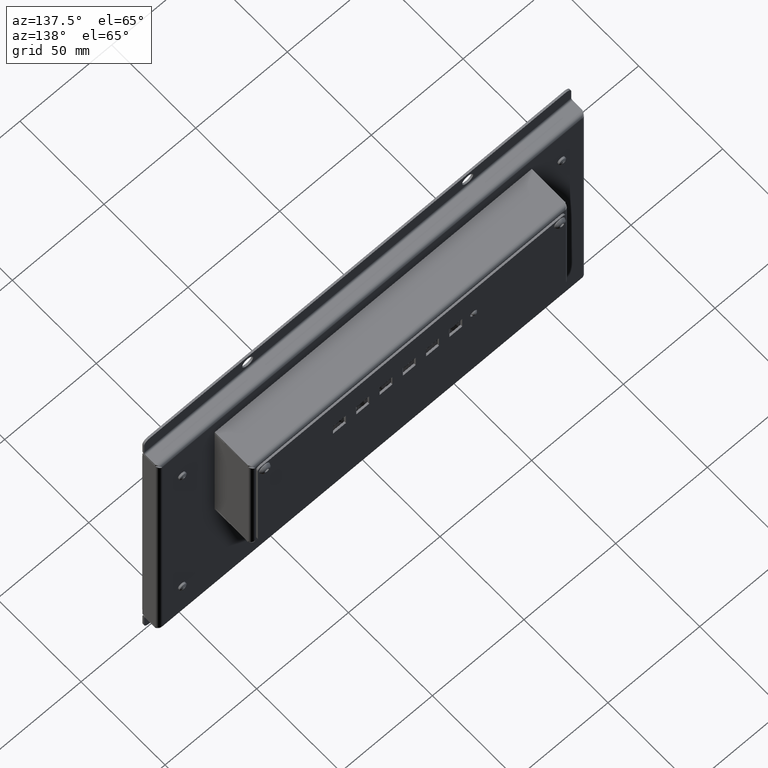
[diagram: clean part render]
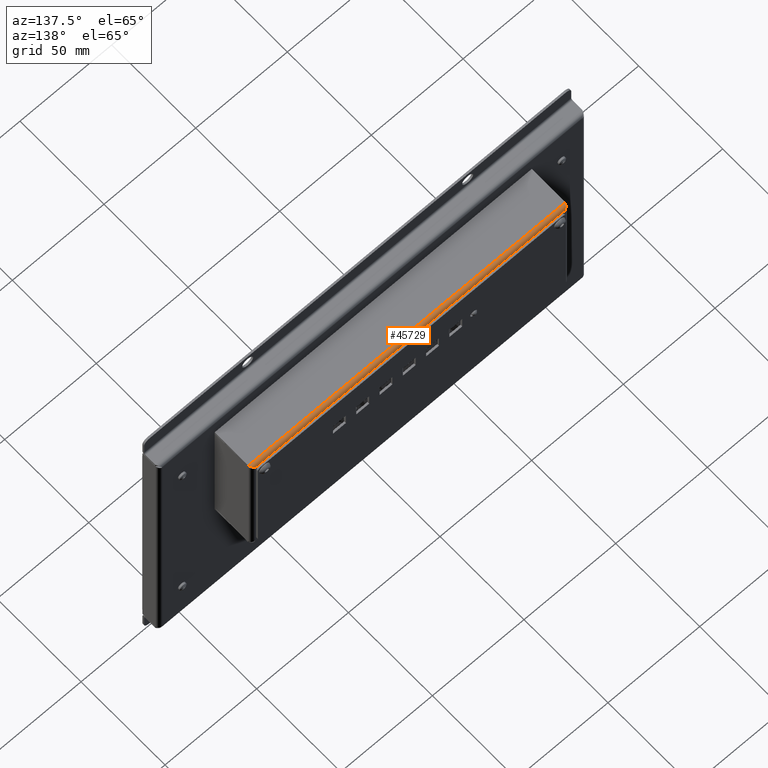
[diagram: same view with one face highlighted and labeled with its STEP entity id]
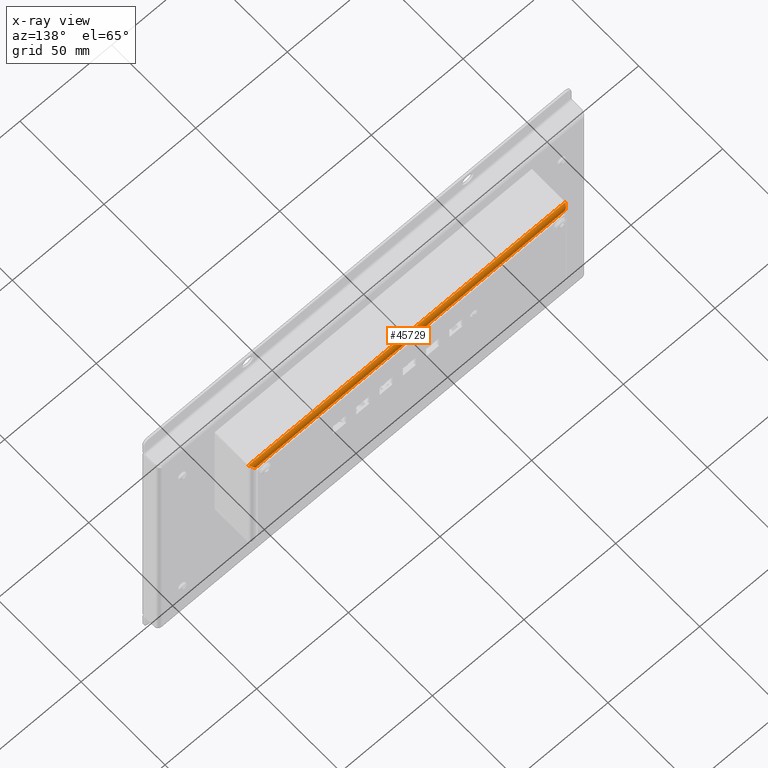
[diagram: x-ray of the same camera — body ghosted, the highlighted face saturated]
A machine part, auxiliary view. The second image highlights one B-rep face of the part: STEP entity #45729.
The next image is the same camera in x-ray: the body ghosted, the highlighted face saturated — about 0% of this face is hidden behind the body in this view.
In plain terms, the highlighted cylindrical surface (edge-blend (fillet) strip) has radius 2 mm, axis along (1, 0, -0).
Its self-contained STEP definition (entity closure, byte-faithful):
#795=CYLINDRICAL_SURFACE('',#48943,2.);
#2169=B_SPLINE_CURVE_WITH_KNOTS('',3,(#78170,#78171,#78172,#78173,#78174,
#78175,#78176),.UNSPECIFIED.,.F.,.F.,(4,3,4),(-0.999999999999995,-0.571428571428571,
0.),.UNSPECIFIED.);
#2186=B_SPLINE_CURVE_WITH_KNOTS('',3,(#78565,#78566,#78567,#78568,#78569,
#78570,#78571),.UNSPECIFIED.,.F.,.F.,(4,3,4),(-1.,-0.57142857142857,0.),
 .UNSPECIFIED.);
#5756=FACE_OUTER_BOUND('',#8460,.T.);
#8460=EDGE_LOOP('',(#36894,#36895,#36896,#36897));
#12196=LINE('',#77757,#16063);
#12306=LINE('',#78434,#16173);
#16063=VECTOR('',#57977,10.);
#16173=VECTOR('',#58327,10.);
#19946=VERTEX_POINT('',#77755);
#19947=VERTEX_POINT('',#77756);
#20063=VERTEX_POINT('',#78145);
#20081=VERTEX_POINT('',#78433);
#25677=EDGE_CURVE('',#19946,#19947,#12196,.T.);
#25841=EDGE_CURVE('',#20063,#19947,#2169,.T.);
#25869=EDGE_CURVE('',#20063,#20081,#12306,.T.);
#25891=EDGE_CURVE('',#20081,#19946,#2186,.T.);
#36894=ORIENTED_EDGE('',*,*,#25869,.F.);
#36895=ORIENTED_EDGE('',*,*,#25841,.T.);
#36896=ORIENTED_EDGE('',*,*,#25677,.F.);
#36897=ORIENTED_EDGE('',*,*,#25891,.F.);
#45729=ADVANCED_FACE('',(#5756),#795,.T.);
#48943=AXIS2_PLACEMENT_3D('',#78700,#58384,#58385);
#57977=DIRECTION('',(1.,1.90473664371203E-15,-7.56249106729497E-15));
#58327=DIRECTION('',(-1.,-1.90473664371203E-15,7.58610924197411E-15));
#58384=DIRECTION('center_axis',(1.,1.90473664371203E-15,-7.55941767922029E-15));
#58385=DIRECTION('ref_axis',(-1.90473664371196E-15,1.,9.31067680290293E-15));
#77755=CARTESIAN_POINT('',(-85.0000000000014,31.6999999999991,65.5999999999991));
#77756=CARTESIAN_POINT('',(83.9999999999986,31.6999999999994,65.5999999999978));
#77757=CARTESIAN_POINT('',(-42.7500000000014,31.6999999999992,65.5999999999988));
#78145=CARTESIAN_POINT('',(85.9999999999986,29.6999999999994,67.5999999999978));
#78170=CARTESIAN_POINT('Ctrl Pts',(85.9999999999986,29.6999999999994,67.5999999999978));
#78171=CARTESIAN_POINT('Ctrl Pts',(85.714285714283,30.1487989505122,67.5999999999978));
#78172=CARTESIAN_POINT('Ctrl Pts',(85.42857142857,30.598392329744,67.4433028753443));
#78173=CARTESIAN_POINT('Ctrl Pts',(85.1428571428564,30.9475344338258,67.1634805801112));
#78174=CARTESIAN_POINT('Ctrl Pts',(84.7619047619048,31.4130572392683,66.7903841864672));
#78175=CARTESIAN_POINT('Ctrl Pts',(84.3809523809519,31.6999999999994,66.1983986006818));
#78176=CARTESIAN_POINT('Ctrl Pts',(83.9999999999985,31.6999999999994,65.5999999999978));
#78433=CARTESIAN_POINT('',(-87.0000000000014,29.6999999999991,67.5999999999991));
#78434=CARTESIAN_POINT('',(-0.500000000001385,29.6999999999993,67.5999999999985));
#78565=CARTESIAN_POINT('Ctrl Pts',(-87.0000000000014,29.6999999999991,67.5999999999991));
#78566=CARTESIAN_POINT('Ctrl Pts',(-86.7142857142879,30.1487989505119,67.5999999999991));
#78567=CARTESIAN_POINT('Ctrl Pts',(-86.4285714285732,30.5983919798683,67.4433025838996));
#78568=CARTESIAN_POINT('Ctrl Pts',(-86.1428571428582,30.9475340339679,67.1634802470314));
#78569=CARTESIAN_POINT('Ctrl Pts',(-85.7619047619049,31.4130567727674,66.7903837978738));
#78570=CARTESIAN_POINT('Ctrl Pts',(-85.380952380951,31.6999999999991,66.198398600683));
#78571=CARTESIAN_POINT('Ctrl Pts',(-85.0000000000015,31.6999999999991,65.5999999999992));
#78700=CARTESIAN_POINT('Origin',(-0.500000000001386,29.6999999999993,65.5999999999985));